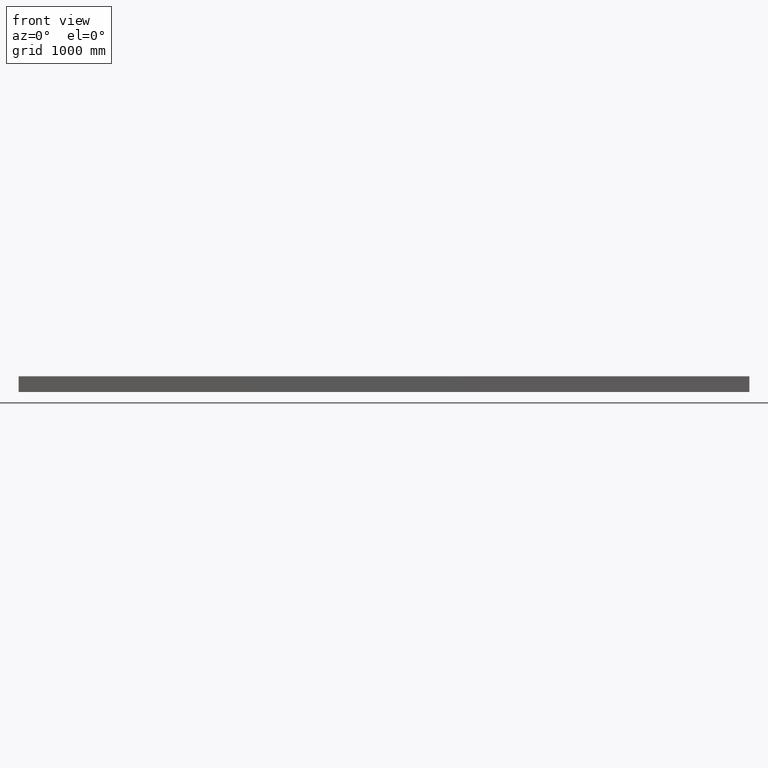
[diagram: clean part render]
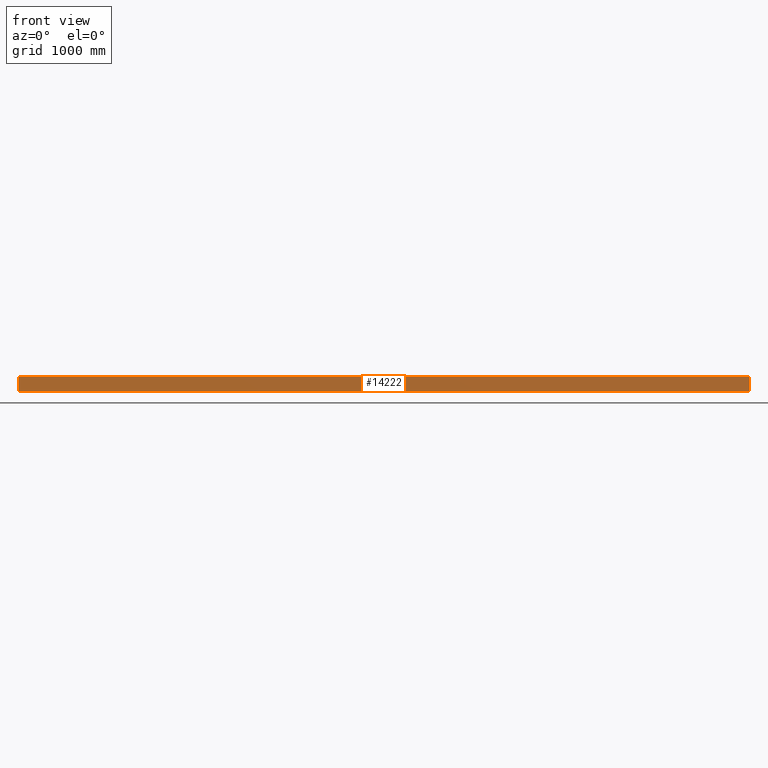
[diagram: same view with one face highlighted and labeled with its STEP entity id]
A machine part, front view. The second image highlights one B-rep face of the part: STEP entity #14222.
In plain terms, the highlighted planar face has unit normal (0, -1, -0).
Its self-contained STEP definition (entity closure, byte-faithful):
#13677=CARTESIAN_POINT('',(-216.99830538452292,22.824799420373409,183.78551975335995));
#13678=VERTEX_POINT('',#13677);
#13686=CARTESIAN_POINT('',(-216.99830538452329,22.824799420372702,375.78551975337149));
#13687=VERTEX_POINT('',#13686);
#13688=CARTESIAN_POINT('',(-216.99830538452341,22.824799420335612,375.78551975337149));
#13689=DIRECTION('',(1.776357E-015,3.863576E-013,-1.0));
#13690=VECTOR('',#13689,192.00000000001154);
#13691=LINE('',#13688,#13690);
#13692=EDGE_CURVE('',#13687,#13678,#13691,.T.);
#14111=CARTESIAN_POINT('',(9693.0016946154756,22.824799420344281,375.78551975338996));
#14112=VERTEX_POINT('',#14111);
#14120=CARTESIAN_POINT('',(9693.0016946154756,22.824799420417463,183.7855197533784));
#14121=VERTEX_POINT('',#14120);
#14122=CARTESIAN_POINT('',(9693.0016946154756,22.824799420417612,183.7855197533784));
#14123=DIRECTION('',(0.0,-3.863576E-013,1.0));
#14124=VECTOR('',#14123,192.00000000001157);
#14125=LINE('',#14122,#14124);
#14126=EDGE_CURVE('',#14121,#14112,#14125,.T.);
#14195=CARTESIAN_POINT('',(-216.99830538452329,22.824799420336529,375.78551975337166));
#14196=DIRECTION('',(1.0,0.0,0.0));
#14197=VECTOR('',#14196,9909.9999999999982);
#14198=LINE('',#14195,#14197);
#14199=EDGE_CURVE('',#13687,#14112,#14198,.T.);
#14206=CARTESIAN_POINT('',(-306.99830538452312,22.824799420372702,279.78551975336779));
#14207=DIRECTION('',(8.120217E-016,-1.0,-3.863392E-013));
#14208=DIRECTION('',(0.0,3.863392E-013,-1.0));
#14209=AXIS2_PLACEMENT_3D('',#14206,#14207,#14208);
#14210=PLANE('',#14209);
#14211=ORIENTED_EDGE('',*,*,#13692,.T.);
#14212=CARTESIAN_POINT('',(9693.0016946154756,22.824799420417769,183.78551975337882));
#14213=DIRECTION('',(-1.0,0.0,0.0));
#14214=VECTOR('',#14213,9909.9999999999982);
#14215=LINE('',#14212,#14214);
#14216=EDGE_CURVE('',#14121,#13678,#14215,.T.);
#14217=ORIENTED_EDGE('',*,*,#14216,.F.);
#14218=ORIENTED_EDGE('',*,*,#14126,.T.);
#14219=ORIENTED_EDGE('',*,*,#14199,.F.);
#14220=EDGE_LOOP('',(#14211,#14217,#14218,#14219));
#14221=FACE_OUTER_BOUND('',#14220,.T.);
#14222=ADVANCED_FACE('',(#14221),#14210,.T.);